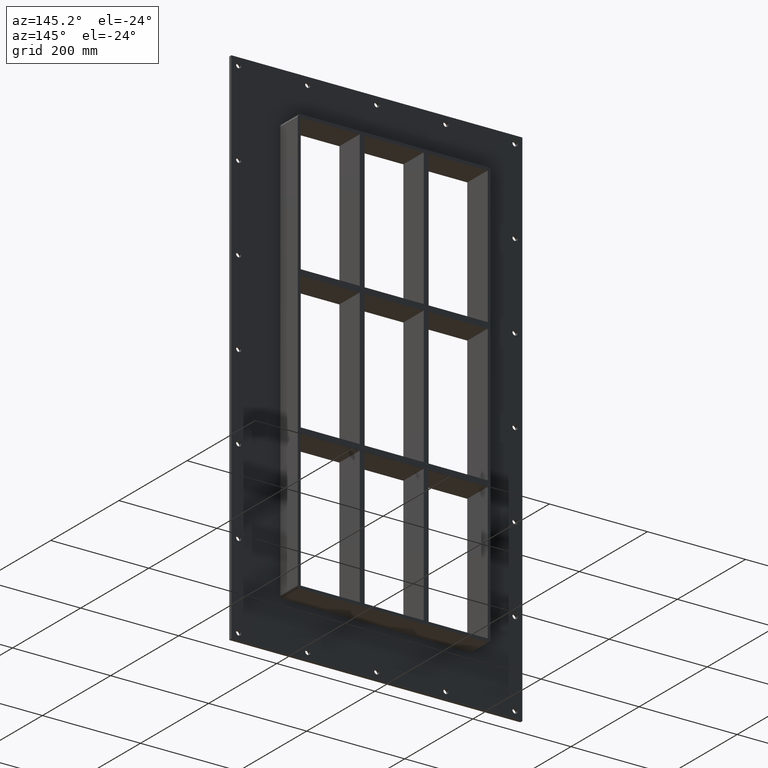
[diagram: clean part render]
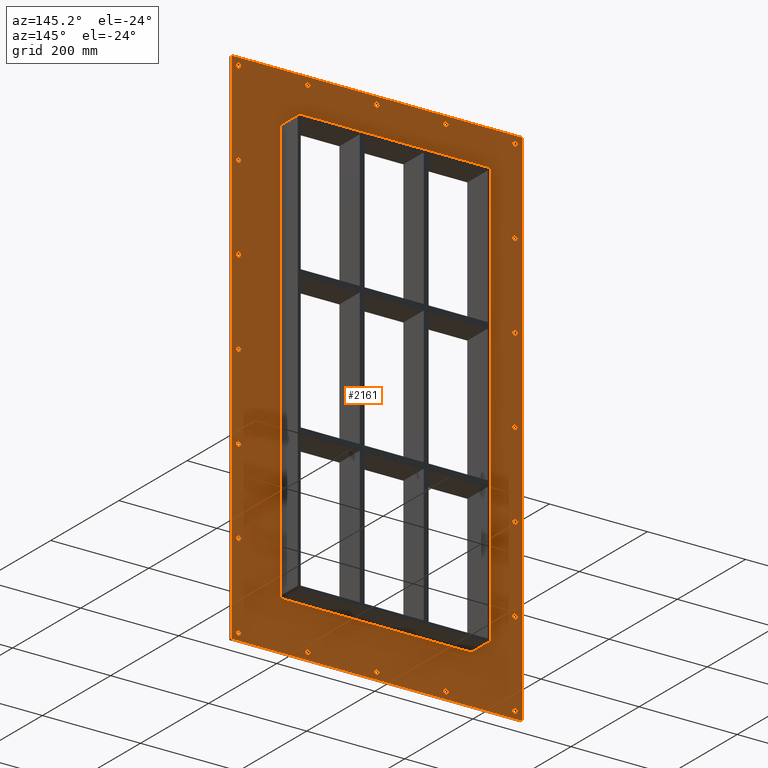
[diagram: same view with one face highlighted and labeled with its STEP entity id]
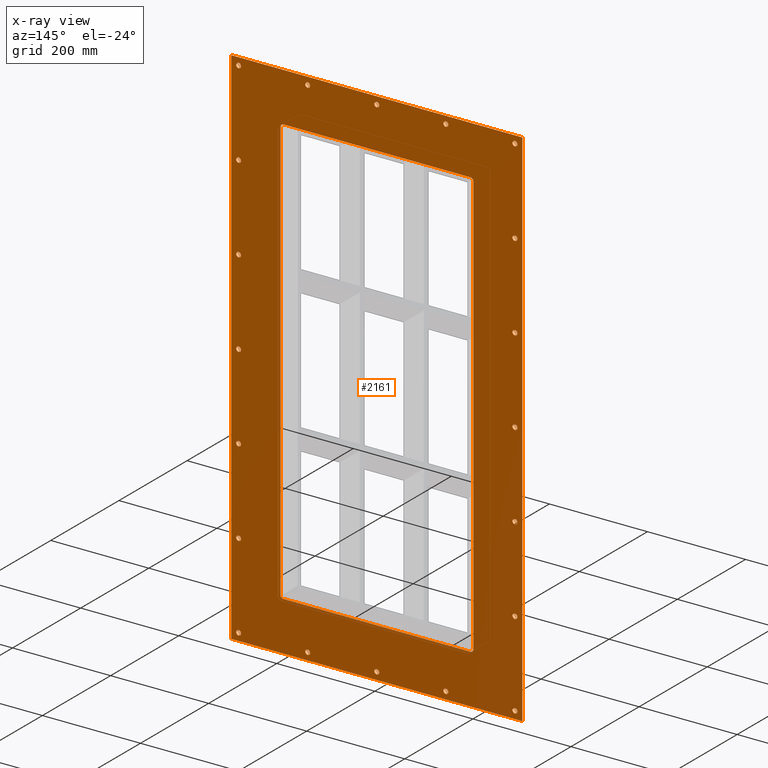
[diagram: x-ray of the same camera — body ghosted, the highlighted face saturated]
A machine part, auxiliary view. The second image highlights one B-rep face of the part: STEP entity #2161.
The next image is the same camera in x-ray: the body ghosted, the highlighted face saturated — about 0% of this face is hidden behind the body in this view.
In plain terms, the highlighted planar face has unit normal (0, 1, 0).
Its self-contained STEP definition (entity closure, byte-faithful):
#73=CARTESIAN_POINT('',(-286.75000000000011,5.999999999999943,-519.99999999999977));
#74=VERTEX_POINT('',#73);
#75=CARTESIAN_POINT('',(-281.75000000000011,5.999999999999943,-519.99999999999977));
#76=DIRECTION('',(0.0,-1.0,0.0));
#77=DIRECTION('',(1.0,0.0,0.0));
#78=AXIS2_PLACEMENT_3D('',#75,#76,#77);
#79=CIRCLE('',#78,5.0);
#80=EDGE_CURVE('',#74,#74,#79,.T.);
#101=CARTESIAN_POINT('',(276.84999999999997,5.999999999999943,-346.6999999999997));
#102=VERTEX_POINT('',#101);
#103=CARTESIAN_POINT('',(281.84999999999997,5.999999999999943,-346.6999999999997));
#104=DIRECTION('',(0.0,-1.0,0.0));
#105=DIRECTION('',(1.0,0.0,0.0));
#106=AXIS2_PLACEMENT_3D('',#103,#104,#105);
#107=CIRCLE('',#106,5.0);
#108=EDGE_CURVE('',#102,#102,#107,.T.);
#129=CARTESIAN_POINT('',(-286.75000000000011,5.999999999999943,-346.6999999999997));
#130=VERTEX_POINT('',#129);
#131=CARTESIAN_POINT('',(-281.75000000000011,5.999999999999943,-346.6999999999997));
#132=DIRECTION('',(0.0,-1.0,0.0));
#133=DIRECTION('',(1.0,0.0,0.0));
#134=AXIS2_PLACEMENT_3D('',#131,#132,#133);
#135=CIRCLE('',#134,5.0);
#136=EDGE_CURVE('',#130,#130,#135,.T.);
#157=CARTESIAN_POINT('',(276.84999999999997,5.999999999999943,-173.39999999999975));
#158=VERTEX_POINT('',#157);
#159=CARTESIAN_POINT('',(281.84999999999997,5.999999999999943,-173.39999999999975));
#160=DIRECTION('',(0.0,-1.0,0.0));
#161=DIRECTION('',(1.0,0.0,0.0));
#162=AXIS2_PLACEMENT_3D('',#159,#160,#161);
#163=CIRCLE('',#162,5.0);
#164=EDGE_CURVE('',#158,#158,#163,.T.);
#185=CARTESIAN_POINT('',(-286.75000000000011,5.999999999999943,-173.39999999999975));
#186=VERTEX_POINT('',#185);
#187=CARTESIAN_POINT('',(-281.75000000000011,5.999999999999943,-173.39999999999975));
#188=DIRECTION('',(0.0,-1.0,0.0));
#189=DIRECTION('',(1.0,0.0,0.0));
#190=AXIS2_PLACEMENT_3D('',#187,#188,#189);
#191=CIRCLE('',#190,5.0);
#192=EDGE_CURVE('',#186,#186,#191,.T.);
#213=CARTESIAN_POINT('',(276.84999999999997,5.999999999999943,-0.099999999999767));
#214=VERTEX_POINT('',#213);
#215=CARTESIAN_POINT('',(281.84999999999997,5.999999999999943,-0.099999999999767));
#216=DIRECTION('',(0.0,-1.0,0.0));
#217=DIRECTION('',(1.0,0.0,0.0));
#218=AXIS2_PLACEMENT_3D('',#215,#216,#217);
#219=CIRCLE('',#218,5.0);
#220=EDGE_CURVE('',#214,#214,#219,.T.);
#241=CARTESIAN_POINT('',(-286.75000000000011,5.999999999999943,-0.099999999999767));
#242=VERTEX_POINT('',#241);
#243=CARTESIAN_POINT('',(-281.75000000000011,5.999999999999943,-0.099999999999767));
#244=DIRECTION('',(0.0,-1.0,0.0));
#245=DIRECTION('',(1.0,0.0,0.0));
#246=AXIS2_PLACEMENT_3D('',#243,#244,#245);
#247=CIRCLE('',#246,5.0);
#248=EDGE_CURVE('',#242,#242,#247,.T.);
#269=CARTESIAN_POINT('',(276.84999999999997,5.999999999999943,173.20000000000022));
#270=VERTEX_POINT('',#269);
#271=CARTESIAN_POINT('',(281.84999999999997,5.999999999999943,173.20000000000022));
#272=DIRECTION('',(0.0,-1.0,0.0));
#273=DIRECTION('',(1.0,0.0,0.0));
#274=AXIS2_PLACEMENT_3D('',#271,#272,#273);
#275=CIRCLE('',#274,5.0);
#276=EDGE_CURVE('',#270,#270,#275,.T.);
#297=CARTESIAN_POINT('',(-286.75000000000011,5.999999999999943,173.20000000000022));
#298=VERTEX_POINT('',#297);
#299=CARTESIAN_POINT('',(-281.75000000000011,5.999999999999943,173.20000000000022));
#300=DIRECTION('',(0.0,-1.0,0.0));
#301=DIRECTION('',(1.0,0.0,0.0));
#302=AXIS2_PLACEMENT_3D('',#299,#300,#301);
#303=CIRCLE('',#302,5.0);
#304=EDGE_CURVE('',#298,#298,#303,.T.);
#325=CARTESIAN_POINT('',(276.84999999999997,5.999999999999943,346.50000000000023));
#326=VERTEX_POINT('',#325);
#327=CARTESIAN_POINT('',(281.84999999999997,5.999999999999943,346.50000000000023));
#328=DIRECTION('',(0.0,-1.0,0.0));
#329=DIRECTION('',(1.0,0.0,0.0));
#330=AXIS2_PLACEMENT_3D('',#327,#328,#329);
#331=CIRCLE('',#330,5.0);
#332=EDGE_CURVE('',#326,#326,#331,.T.);
#353=CARTESIAN_POINT('',(-286.75000000000011,5.999999999999943,346.50000000000023));
#354=VERTEX_POINT('',#353);
#355=CARTESIAN_POINT('',(-281.75000000000011,5.999999999999943,346.50000000000023));
#356=DIRECTION('',(0.0,-1.0,0.0));
#357=DIRECTION('',(1.0,0.0,0.0));
#358=AXIS2_PLACEMENT_3D('',#355,#356,#357);
#359=CIRCLE('',#358,5.0);
#360=EDGE_CURVE('',#354,#354,#359,.T.);
#381=CARTESIAN_POINT('',(-145.85000000000005,5.999999999999943,519.80000000000018));
#382=VERTEX_POINT('',#381);
#383=CARTESIAN_POINT('',(-140.85000000000005,5.999999999999943,519.80000000000018));
#384=DIRECTION('',(0.0,-1.0,0.0));
#385=DIRECTION('',(1.0,0.0,0.0));
#386=AXIS2_PLACEMENT_3D('',#383,#384,#385);
#387=CIRCLE('',#386,5.0);
#388=EDGE_CURVE('',#382,#382,#387,.T.);
#409=CARTESIAN_POINT('',(-145.85000000000005,5.999999999999943,-520.0));
#410=VERTEX_POINT('',#409);
#411=CARTESIAN_POINT('',(-140.85000000000005,5.999999999999943,-520.0));
#412=DIRECTION('',(0.0,-1.0,0.0));
#413=DIRECTION('',(1.0,0.0,0.0));
#414=AXIS2_PLACEMENT_3D('',#411,#412,#413);
#415=CIRCLE('',#414,5.0);
#416=EDGE_CURVE('',#410,#410,#415,.T.);
#437=CARTESIAN_POINT('',(-4.950000000000081,5.999999999999943,519.80000000000018));
#438=VERTEX_POINT('',#437);
#439=CARTESIAN_POINT('',(0.049999999999919,5.999999999999943,519.80000000000018));
#440=DIRECTION('',(0.0,-1.0,0.0));
#441=DIRECTION('',(1.0,0.0,0.0));
#442=AXIS2_PLACEMENT_3D('',#439,#440,#441);
#443=CIRCLE('',#442,5.0);
#444=EDGE_CURVE('',#438,#438,#443,.T.);
#465=CARTESIAN_POINT('',(-4.950000000000081,5.999999999999943,-520.0));
#466=VERTEX_POINT('',#465);
#467=CARTESIAN_POINT('',(0.049999999999919,5.999999999999943,-520.0));
#468=DIRECTION('',(0.0,-1.0,0.0));
#469=DIRECTION('',(1.0,0.0,0.0));
#470=AXIS2_PLACEMENT_3D('',#467,#468,#469);
#471=CIRCLE('',#470,5.0);
#472=EDGE_CURVE('',#466,#466,#471,.T.);
#493=CARTESIAN_POINT('',(135.94999999999993,5.999999999999943,519.80000000000018));
#494=VERTEX_POINT('',#493);
#495=CARTESIAN_POINT('',(140.94999999999993,5.999999999999943,519.80000000000018));
#496=DIRECTION('',(0.0,-1.0,0.0));
#497=DIRECTION('',(1.0,0.0,0.0));
#498=AXIS2_PLACEMENT_3D('',#495,#496,#497);
#499=CIRCLE('',#498,5.0);
#500=EDGE_CURVE('',#494,#494,#499,.T.);
#521=CARTESIAN_POINT('',(135.94999999999993,5.999999999999943,-520.0));
#522=VERTEX_POINT('',#521);
#523=CARTESIAN_POINT('',(140.94999999999993,5.999999999999943,-520.0));
#524=DIRECTION('',(0.0,-1.0,0.0));
#525=DIRECTION('',(1.0,0.0,0.0));
#526=AXIS2_PLACEMENT_3D('',#523,#524,#525);
#527=CIRCLE('',#526,5.0);
#528=EDGE_CURVE('',#522,#522,#527,.T.);
#549=CARTESIAN_POINT('',(276.84999999999997,5.999999999999943,-520.0));
#550=VERTEX_POINT('',#549);
#551=CARTESIAN_POINT('',(281.84999999999997,5.999999999999943,-520.0));
#552=DIRECTION('',(0.0,-1.0,0.0));
#553=DIRECTION('',(1.0,0.0,0.0));
#554=AXIS2_PLACEMENT_3D('',#551,#552,#553);
#555=CIRCLE('',#554,5.0);
#556=EDGE_CURVE('',#550,#550,#555,.T.);
#577=CARTESIAN_POINT('',(-286.75000000000011,5.999999999999943,519.80000000000018));
#578=VERTEX_POINT('',#577);
#579=CARTESIAN_POINT('',(-281.75000000000011,5.999999999999943,519.80000000000018));
#580=DIRECTION('',(0.0,-1.0,0.0));
#581=DIRECTION('',(1.0,0.0,0.0));
#582=AXIS2_PLACEMENT_3D('',#579,#580,#581);
#583=CIRCLE('',#582,5.0);
#584=EDGE_CURVE('',#578,#578,#583,.T.);
#605=CARTESIAN_POINT('',(276.84999999999997,5.999999999999943,519.80000000000018));
#606=VERTEX_POINT('',#605);
#607=CARTESIAN_POINT('',(281.84999999999997,5.999999999999943,519.80000000000018));
#608=DIRECTION('',(0.0,-1.0,0.0));
#609=DIRECTION('',(1.0,0.0,0.0));
#610=AXIS2_PLACEMENT_3D('',#607,#608,#609);
#611=CIRCLE('',#610,5.0);
#612=EDGE_CURVE('',#606,#606,#611,.T.);
#1992=CARTESIAN_POINT('',(0.0,6.000000000000001,2.050259E-014));
#1993=DIRECTION('',(0.0,1.0,0.0));
#1994=DIRECTION('',(0.0,0.0,1.0));
#1995=AXIS2_PLACEMENT_3D('',#1992,#1993,#1994);
#1996=PLANE('',#1995);
#1997=CARTESIAN_POINT('',(-296.75000000000006,6.000000000000001,535.00000000000011));
#1998=VERTEX_POINT('',#1997);
#1999=CARTESIAN_POINT('',(296.75000000000006,6.000000000000001,535.00000000000011));
#2000=VERTEX_POINT('',#1999);
#2001=CARTESIAN_POINT('',(-296.75000000000006,6.000000000000001,535.00000000000011));
#2002=DIRECTION('',(1.0,0.0,0.0));
#2003=VECTOR('',#2002,593.50000000000011);
#2004=LINE('',#2001,#2003);
#2005=EDGE_CURVE('',#1998,#2000,#2004,.T.);
#2006=ORIENTED_EDGE('',*,*,#2005,.T.);
#2007=CARTESIAN_POINT('',(296.75000000000006,6.000000000000001,-534.99999999999989));
#2008=VERTEX_POINT('',#2007);
#2009=CARTESIAN_POINT('',(296.75000000000006,6.000000000000001,535.00000000000011));
#2010=DIRECTION('',(0.0,0.0,-1.0));
#2011=VECTOR('',#2010,1070.0);
#2012=LINE('',#2009,#2011);
#2013=EDGE_CURVE('',#2000,#2008,#2012,.T.);
#2014=ORIENTED_EDGE('',*,*,#2013,.T.);
#2015=CARTESIAN_POINT('',(-296.75000000000006,6.000000000000001,-534.99999999999989));
#2016=VERTEX_POINT('',#2015);
#2017=CARTESIAN_POINT('',(296.75000000000006,6.000000000000001,-535.0));
#2018=DIRECTION('',(-1.0,0.0,0.0));
#2019=VECTOR('',#2018,593.50000000000011);
#2020=LINE('',#2017,#2019);
#2021=EDGE_CURVE('',#2008,#2016,#2020,.T.);
#2022=ORIENTED_EDGE('',*,*,#2021,.T.);
#2023=CARTESIAN_POINT('',(-296.75000000000006,6.000000000000001,-535.0));
#2024=DIRECTION('',(0.0,0.0,1.0));
#2025=VECTOR('',#2024,1070.0);
#2026=LINE('',#2023,#2025);
#2027=EDGE_CURVE('',#2016,#1998,#2026,.T.);
#2028=ORIENTED_EDGE('',*,*,#2027,.T.);
#2029=EDGE_LOOP('',(#2006,#2014,#2022,#2028));
#2030=FACE_OUTER_BOUND('',#2029,.T.);
#2031=ORIENTED_EDGE('',*,*,#80,.T.);
#2032=EDGE_LOOP('',(#2031));
#2033=FACE_BOUND('',#2032,.T.);
#2034=ORIENTED_EDGE('',*,*,#108,.T.);
#2035=EDGE_LOOP('',(#2034));
#2036=FACE_BOUND('',#2035,.T.);
#2037=ORIENTED_EDGE('',*,*,#136,.T.);
#2038=EDGE_LOOP('',(#2037));
#2039=FACE_BOUND('',#2038,.T.);
#2040=ORIENTED_EDGE('',*,*,#164,.T.);
#2041=EDGE_LOOP('',(#2040));
#2042=FACE_BOUND('',#2041,.T.);
#2043=ORIENTED_EDGE('',*,*,#192,.T.);
#2044=EDGE_LOOP('',(#2043));
#2045=FACE_BOUND('',#2044,.T.);
#2046=ORIENTED_EDGE('',*,*,#220,.T.);
#2047=EDGE_LOOP('',(#2046));
#2048=FACE_BOUND('',#2047,.T.);
#2049=ORIENTED_EDGE('',*,*,#248,.T.);
#2050=EDGE_LOOP('',(#2049));
#2051=FACE_BOUND('',#2050,.T.);
#2052=ORIENTED_EDGE('',*,*,#276,.T.);
#2053=EDGE_LOOP('',(#2052));
#2054=FACE_BOUND('',#2053,.T.);
#2055=ORIENTED_EDGE('',*,*,#304,.T.);
#2056=EDGE_LOOP('',(#2055));
#2057=FACE_BOUND('',#2056,.T.);
#2058=ORIENTED_EDGE('',*,*,#332,.T.);
#2059=EDGE_LOOP('',(#2058));
#2060=FACE_BOUND('',#2059,.T.);
#2061=ORIENTED_EDGE('',*,*,#360,.T.);
#2062=EDGE_LOOP('',(#2061));
#2063=FACE_BOUND('',#2062,.T.);
#2064=ORIENTED_EDGE('',*,*,#388,.T.);
#2065=EDGE_LOOP('',(#2064));
#2066=FACE_BOUND('',#2065,.T.);
#2067=ORIENTED_EDGE('',*,*,#416,.T.);
#2068=EDGE_LOOP('',(#2067));
#2069=FACE_BOUND('',#2068,.T.);
#2070=ORIENTED_EDGE('',*,*,#444,.T.);
#2071=EDGE_LOOP('',(#2070));
#2072=FACE_BOUND('',#2071,.T.);
#2073=ORIENTED_EDGE('',*,*,#472,.T.);
#2074=EDGE_LOOP('',(#2073));
#2075=FACE_BOUND('',#2074,.T.);
#2076=ORIENTED_EDGE('',*,*,#500,.T.);
#2077=EDGE_LOOP('',(#2076));
#2078=FACE_BOUND('',#2077,.T.);
#2079=ORIENTED_EDGE('',*,*,#528,.T.);
#2080=EDGE_LOOP('',(#2079));
#2081=FACE_BOUND('',#2080,.T.);
#2082=ORIENTED_EDGE('',*,*,#556,.T.);
#2083=EDGE_LOOP('',(#2082));
#2084=FACE_BOUND('',#2083,.T.);
#2085=ORIENTED_EDGE('',*,*,#584,.T.);
#2086=EDGE_LOOP('',(#2085));
#2087=FACE_BOUND('',#2086,.T.);
#2088=ORIENTED_EDGE('',*,*,#612,.T.);
#2089=EDGE_LOOP('',(#2088));
#2090=FACE_BOUND('',#2089,.T.);
#2091=CARTESIAN_POINT('',(-190.75,6.000000000000001,-435.00000000000011));
#2092=VERTEX_POINT('',#2091);
#2093=CARTESIAN_POINT('',(-196.75,6.000000000000001,-429.00000000000023));
#2094=VERTEX_POINT('',#2093);
#2095=CARTESIAN_POINT('',(-190.75,6.000000000000001,-429.00000000000023));
#2096=DIRECTION('',(0.0,1.0,0.0));
#2097=DIRECTION('',(-0.707106781186552,0.0,-0.707106781186543));
#2098=AXIS2_PLACEMENT_3D('',#2095,#2096,#2097);
#2099=CIRCLE('',#2098,6.000000000000001);
#2100=EDGE_CURVE('',#2092,#2094,#2099,.T.);
#2101=ORIENTED_EDGE('',*,*,#2100,.F.);
#2102=CARTESIAN_POINT('',(190.75000000000006,6.000000000000001,-435.00000000000011));
#2103=VERTEX_POINT('',#2102);
#2104=CARTESIAN_POINT('',(190.75000000000006,6.000000000000001,-435.00000000000011));
#2105=DIRECTION('',(-1.0,0.0,0.0));
#2106=VECTOR('',#2105,381.5);
#2107=LINE('',#2104,#2106);
#2108=EDGE_CURVE('',#2103,#2092,#2107,.T.);
#2109=ORIENTED_EDGE('',*,*,#2108,.F.);
#2110=CARTESIAN_POINT('',(196.75000000000009,6.000000000000001,-429.00000000000006));
#2111=VERTEX_POINT('',#2110);
#2112=CARTESIAN_POINT('',(190.75000000000006,6.000000000000001,-429.00000000000006));
#2113=DIRECTION('',(0.0,1.0,0.0));
#2114=DIRECTION('',(0.707106781186543,0.0,-0.707106781186552));
#2115=AXIS2_PLACEMENT_3D('',#2112,#2113,#2114);
#2116=CIRCLE('',#2115,6.0);
#2117=EDGE_CURVE('',#2111,#2103,#2116,.T.);
#2118=ORIENTED_EDGE('',*,*,#2117,.F.);
#2119=CARTESIAN_POINT('',(196.75000000000009,6.000000000000001,429.0));
#2120=VERTEX_POINT('',#2119);
#2121=CARTESIAN_POINT('',(196.75000000000009,6.000000000000001,429.0));
#2122=DIRECTION('',(0.0,0.0,-1.0));
#2123=VECTOR('',#2122,858.0);
#2124=LINE('',#2121,#2123);
#2125=EDGE_CURVE('',#2120,#2111,#2124,.T.);
#2126=ORIENTED_EDGE('',*,*,#2125,.F.);
#2127=CARTESIAN_POINT('',(190.75000000000006,6.000000000000001,435.0));
#2128=VERTEX_POINT('',#2127);
#2129=CARTESIAN_POINT('',(190.75000000000006,6.000000000000001,429.0));
#2130=DIRECTION('',(0.0,1.0,0.0));
#2131=DIRECTION('',(0.707106781186543,0.0,0.707106781186552));
#2132=AXIS2_PLACEMENT_3D('',#2129,#2130,#2131);
#2133=CIRCLE('',#2132,6.0);
#2134=EDGE_CURVE('',#2128,#2120,#2133,.T.);
#2135=ORIENTED_EDGE('',*,*,#2134,.F.);
#2136=CARTESIAN_POINT('',(-190.75,6.000000000000001,435.0));
#2137=VERTEX_POINT('',#2136);
#2138=CARTESIAN_POINT('',(-190.75,6.000000000000001,435.0));
#2139=DIRECTION('',(1.0,0.0,0.0));
#2140=VECTOR('',#2139,381.50000000000011);
#2141=LINE('',#2138,#2140);
#2142=EDGE_CURVE('',#2137,#2128,#2141,.T.);
#2143=ORIENTED_EDGE('',*,*,#2142,.F.);
#2144=CARTESIAN_POINT('',(-196.75,6.000000000000001,428.99999999999989));
#2145=VERTEX_POINT('',#2144);
#2146=CARTESIAN_POINT('',(-190.75,6.000000000000001,428.99999999999989));
#2147=DIRECTION('',(0.0,1.0,0.0));
#2148=DIRECTION('',(-0.707106781186543,0.0,0.707106781186552));
#2149=AXIS2_PLACEMENT_3D('',#2146,#2147,#2148);
#2150=CIRCLE('',#2149,6.0);
#2151=EDGE_CURVE('',#2145,#2137,#2150,.T.);
#2152=ORIENTED_EDGE('',*,*,#2151,.F.);
#2153=CARTESIAN_POINT('',(-196.75,6.000000000000001,-429.00000000000017));
#2154=DIRECTION('',(0.0,0.0,1.0));
#2155=VECTOR('',#2154,858.00000000000011);
#2156=LINE('',#2153,#2155);
#2157=EDGE_CURVE('',#2094,#2145,#2156,.T.);
#2158=ORIENTED_EDGE('',*,*,#2157,.F.);
#2159=EDGE_LOOP('',(#2101,#2109,#2118,#2126,#2135,#2143,#2152,#2158));
#2160=FACE_BOUND('',#2159,.T.);
#2161=ADVANCED_FACE('',(#2030,#2033,#2036,#2039,#2042,#2045,#2048,#2051,#2054,#2057,#2060,#2063,#2066,#2069,#2072,#2075,#2078,#2081,#2084,#2087,#2090,#2160),#1996,.T.);